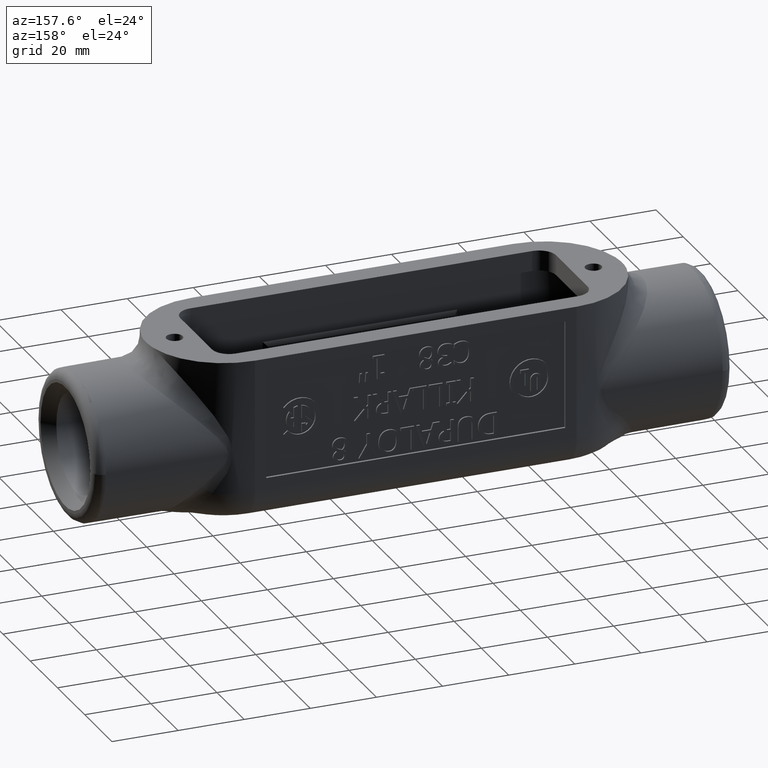
[diagram: clean part render]
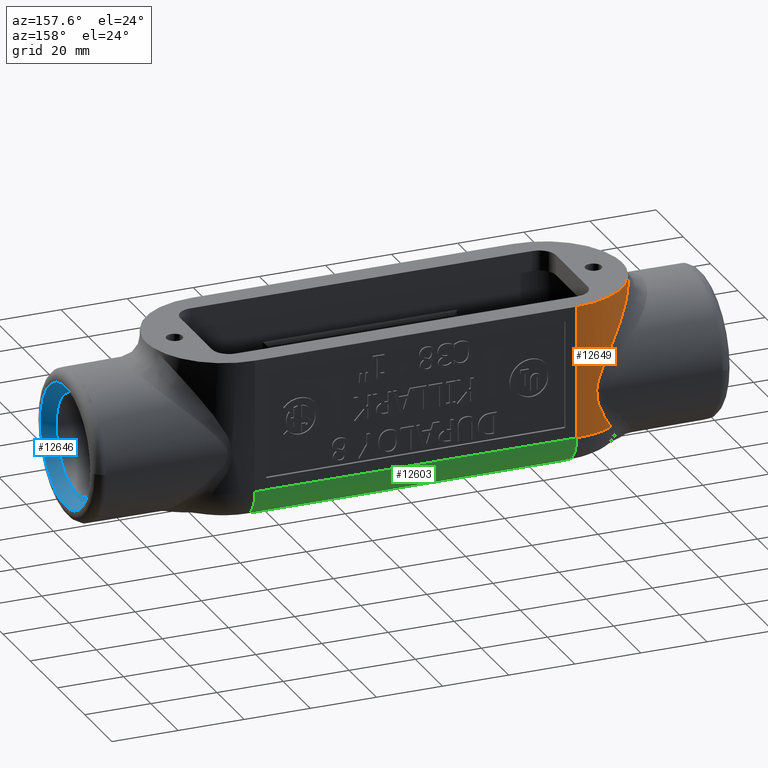
[diagram: same view with three faces highlighted in distinct colors, each labeled with its STEP entity id]
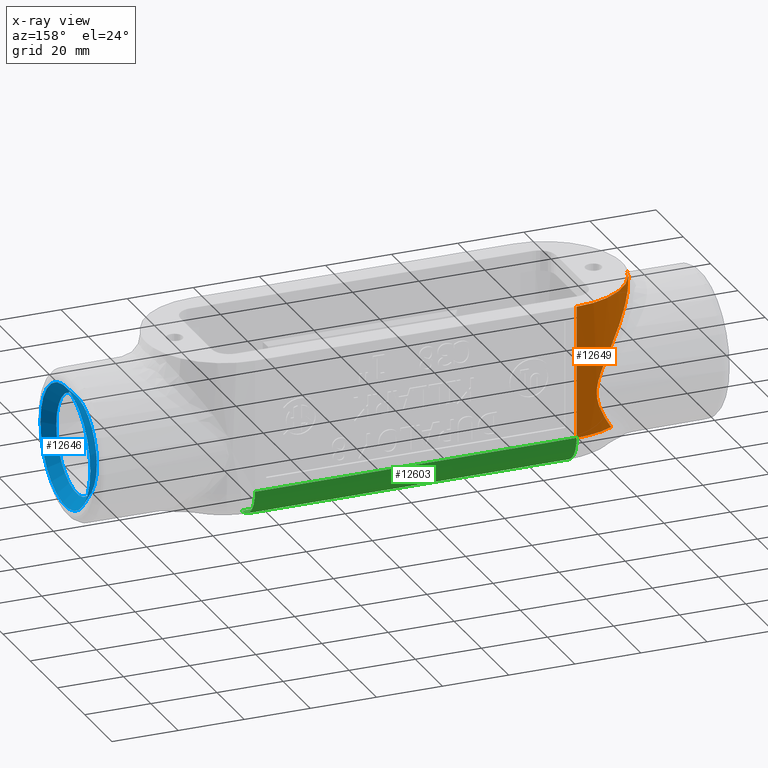
[diagram: x-ray of the same camera — body ghosted, the three highlighted faces saturated]
A machine part, auxiliary view with three faces highlighted in distinct colors.
The next image is the same camera in x-ray (body ghosted, the three faces saturated) — at least one of them is partly hidden behind the body in this view.
Their STEP definitions:

[orange] entity #12649 — the highlighted cylindrical surface (partial cylindrical patch) has radius 23.368 mm, axis along (0, 0, 1).
#456=LINE('',#18301,#1683);
#1683=VECTOR('',#14144,0.393700787401575);
#2894=B_SPLINE_CURVE_WITH_KNOTS('',3,(#16587,#16588,#16589,#16590,#16591,
#16592,#16593,#16594,#16595,#16596,#16597,#16598,#16599,#16600,#16601),
 .UNSPECIFIED.,.F.,.F.,(4,1,1,1,1,1,1,1,1,1,1,1,4),(-5.94617684111506,-5.55975701219474,
-4.63313084349562,-3.7065046747965,-2.77987850609737,-2.31656542174781,
-1.85325233739825,-1.62159579522347,-1.38993925304869,-1.15828271087391,
-0.926626168699124,-0.463313084349562,0.),.UNSPECIFIED.);
#4415=FACE_OUTER_BOUND('',#5122,.T.);
#5122=EDGE_LOOP('',(#9196,#9197,#9198,#9199));
#5833=CIRCLE('',#13319,0.92);
#5893=CIRCLE('',#13416,0.92);
#5940=VERTEX_POINT('',#16568);
#5942=VERTEX_POINT('',#16586);
#5965=VERTEX_POINT('',#17292);
#6030=VERTEX_POINT('',#18299);
#7144=EDGE_CURVE('',#5940,#5942,#2894,.T.);
#7183=EDGE_CURVE('',#5942,#5965,#5833,.T.);
#7280=EDGE_CURVE('',#6030,#5940,#5893,.T.);
#7281=EDGE_CURVE('',#5965,#6030,#456,.T.);
#9196=ORIENTED_EDGE('',*,*,#7144,.F.);
#9197=ORIENTED_EDGE('',*,*,#7280,.F.);
#9198=ORIENTED_EDGE('',*,*,#7281,.F.);
#9199=ORIENTED_EDGE('',*,*,#7183,.F.);
#12564=CYLINDRICAL_SURFACE('',#13415,0.92);
#12649=ADVANCED_FACE('',(#4415),#12564,.T.);
#13319=AXIS2_PLACEMENT_3D('',#17293,#13929,#13930);
#13415=AXIS2_PLACEMENT_3D('',#18298,#14140,#14141);
#13416=AXIS2_PLACEMENT_3D('',#18300,#14142,#14143);
#13929=DIRECTION('center_axis',(0.,0.,-1.));
#13930=DIRECTION('ref_axis',(-0.707106781186548,0.707106781186547,0.));
#14140=DIRECTION('center_axis',(0.,0.,1.));
#14141=DIRECTION('ref_axis',(0.,-1.,0.));
#14142=DIRECTION('center_axis',(0.,0.,1.));
#14143=DIRECTION('ref_axis',(0.,-1.,0.));
#14144=DIRECTION('',(0.,0.,1.));
#16568=CARTESIAN_POINT('',(-2.81976384868025,0.166740451364687,0.984999999999994));
#16586=CARTESIAN_POINT('',(-2.37581972146993,0.796269542494487,-0.595000000000016));
#16587=CARTESIAN_POINT('Ctrl Pts',(-2.81977464691436,0.166743594883537,
0.985005994138647));
#16588=CARTESIAN_POINT('Ctrl Pts',(-2.81259926019132,0.205623008800158,
0.97557407967763));
#16589=CARTESIAN_POINT('Ctrl Pts',(-2.78001800155369,0.334636631804032,
0.932720527491873));
#16590=CARTESIAN_POINT('Ctrl Pts',(-2.68361803007022,0.525730148836274,
0.805553579615057));
#16591=CARTESIAN_POINT('Ctrl Pts',(-2.52469342887438,0.70096043451209,0.590730160668873));
#16592=CARTESIAN_POINT('Ctrl Pts',(-2.37753766084056,0.799934176227861,
0.382343189908883));
#16593=CARTESIAN_POINT('Ctrl Pts',(-2.26378505588542,0.852861195943775,
0.197249915359625));
#16594=CARTESIAN_POINT('Ctrl Pts',(-2.201145323005,0.874772996835816,0.069290386531998));
#16595=CARTESIAN_POINT('Ctrl Pts',(-2.17044227184717,0.883849524041263,
-0.0463072349526193));
#16596=CARTESIAN_POINT('Ctrl Pts',(-2.16626178589832,0.885022389250007,
-0.138447939635046));
#16597=CARTESIAN_POINT('Ctrl Pts',(-2.18286538575559,0.880255519547351,
-0.227817346318545));
#16598=CARTESIAN_POINT('Ctrl Pts',(-2.22294948642754,0.867502170607297,
-0.337774873802741));
#16599=CARTESIAN_POINT('Ctrl Pts',(-2.28949592073802,0.842034027947757,
-0.461094962745267));
#16600=CARTESIAN_POINT('Ctrl Pts',(-2.34684639247596,0.813037082485067,
-0.551234888410672));
#16601=CARTESIAN_POINT('Ctrl Pts',(-2.37581972146993,0.796269542494487,
-0.595000000000032));
#17292=CARTESIAN_POINT('',(-1.915,0.92,-0.595));
#17293=CARTESIAN_POINT('Origin',(-1.915,0.,-0.595));
#18298=CARTESIAN_POINT('Origin',(-1.915,0.,0.));
#18299=CARTESIAN_POINT('',(-1.915,0.92,0.985));
#18300=CARTESIAN_POINT('Origin',(-1.915,0.,0.985));
#18301=CARTESIAN_POINT('',(-1.915,0.92,0.));

[blue] entity #12646 — the highlighted conical surface has half-angle 45 deg.
#17=CONICAL_SURFACE('',#13410,0.65225,0.785398163397448);
#4279=FACE_BOUND('',#5117,.T.);
#4412=FACE_OUTER_BOUND('',#5116,.T.);
#5116=EDGE_LOOP('',(#9190));
#5117=EDGE_LOOP('',(#9191));
#5846=CIRCLE('',#13342,0.719);
#5891=CIRCLE('',#13411,0.5855);
#5977=VERTEX_POINT('',#17501);
#6028=VERTEX_POINT('',#18292);
#7204=EDGE_CURVE('',#5977,#5977,#5846,.T.);
#7278=EDGE_CURVE('',#6028,#6028,#5891,.T.);
#9190=ORIENTED_EDGE('',*,*,#7204,.F.);
#9191=ORIENTED_EDGE('',*,*,#7278,.T.);
#12646=ADVANCED_FACE('',(#4412,#4279),#17,.F.);
#13342=AXIS2_PLACEMENT_3D('',#17502,#13981,#13982);
#13410=AXIS2_PLACEMENT_3D('',#18291,#14130,#14131);
#13411=AXIS2_PLACEMENT_3D('',#18293,#14132,#14133);
#13981=DIRECTION('center_axis',(-1.,0.,0.));
#13982=DIRECTION('ref_axis',(-2.42003570137209E-16,1.,9.93423069679226E-17));
#14130=DIRECTION('center_axis',(1.,2.42003570137209E-16,1.48184448775382E-32));
#14131=DIRECTION('ref_axis',(-2.42003570137209E-16,1.,9.93423069679226E-17));
#14132=DIRECTION('center_axis',(-1.,-2.42003570137209E-16,-1.48184448775382E-32));
#14133=DIRECTION('ref_axis',(-1.48184448775382E-32,0.,1.));
#17501=CARTESIAN_POINT('',(3.795,0.719,-0.11));
#17502=CARTESIAN_POINT('Origin',(3.795,2.42636843387368E-32,-0.11));
#18291=CARTESIAN_POINT('Origin',(3.72825,-1.61537383066588E-17,-0.11));
#18292=CARTESIAN_POINT('',(3.6615,0.5855,-0.11));
#18293=CARTESIAN_POINT('Origin',(3.6615,-3.23074766133174E-17,-0.11));

[green] entity #12603 — the highlighted cylindrical surface (edge-blend (fillet) strip) has radius 9.906 mm, axis along (1, 0, 0).
#437=LINE('',#17300,#1664);
#438=LINE('',#17301,#1665);
#1664=VECTOR('',#13939,0.393700787401575);
#1665=VECTOR('',#13940,0.393700787401575);
#4369=FACE_OUTER_BOUND('',#5057,.T.);
#5057=EDGE_LOOP('',(#9011,#9012,#9013,#9014));
#5832=CIRCLE('',#13317,0.39);
#5834=CIRCLE('',#13320,0.39);
#5961=VERTEX_POINT('',#17203);
#5964=VERTEX_POINT('',#17211);
#5965=VERTEX_POINT('',#17292);
#5966=VERTEX_POINT('',#17294);
#7181=EDGE_CURVE('',#5961,#5964,#5832,.T.);
#7184=EDGE_CURVE('',#5965,#5966,#5834,.T.);
#7187=EDGE_CURVE('',#5964,#5966,#437,.T.);
#7188=EDGE_CURVE('',#5965,#5961,#438,.T.);
#9011=ORIENTED_EDGE('',*,*,#7181,.T.);
#9012=ORIENTED_EDGE('',*,*,#7187,.T.);
#9013=ORIENTED_EDGE('',*,*,#7184,.F.);
#9014=ORIENTED_EDGE('',*,*,#7188,.T.);
#12552=CYLINDRICAL_SURFACE('',#13323,0.39);
#12603=ADVANCED_FACE('',(#4369),#12552,.T.);
#13317=AXIS2_PLACEMENT_3D('',#17213,#13925,#13926);
#13320=AXIS2_PLACEMENT_3D('',#17295,#13931,#13932);
#13323=AXIS2_PLACEMENT_3D('',#17299,#13937,#13938);
#13925=DIRECTION('center_axis',(-1.,0.,0.));
#13926=DIRECTION('ref_axis',(0.,1.,0.));
#13931=DIRECTION('center_axis',(-1.,0.,0.));
#13932=DIRECTION('ref_axis',(0.,1.,0.));
#13937=DIRECTION('center_axis',(1.,0.,0.));
#13938=DIRECTION('ref_axis',(0.,0.707106781186548,-0.707106781186547));
#13939=DIRECTION('',(-1.,0.,0.));
#13940=DIRECTION('',(1.,0.,0.));
#17203=CARTESIAN_POINT('',(1.915,0.92,-0.595));
#17211=CARTESIAN_POINT('',(1.915,0.53,-0.985));
#17213=CARTESIAN_POINT('Origin',(1.915,0.53,-0.595));
#17292=CARTESIAN_POINT('',(-1.915,0.92,-0.595));
#17294=CARTESIAN_POINT('',(-1.915,0.53,-0.985));
#17295=CARTESIAN_POINT('Origin',(-1.915,0.53,-0.595));
#17299=CARTESIAN_POINT('Origin',(0.9575,0.53,-0.595));
#17300=CARTESIAN_POINT('',(0.9575,0.53,-0.985));
#17301=CARTESIAN_POINT('',(0.9575,0.92,-0.595));